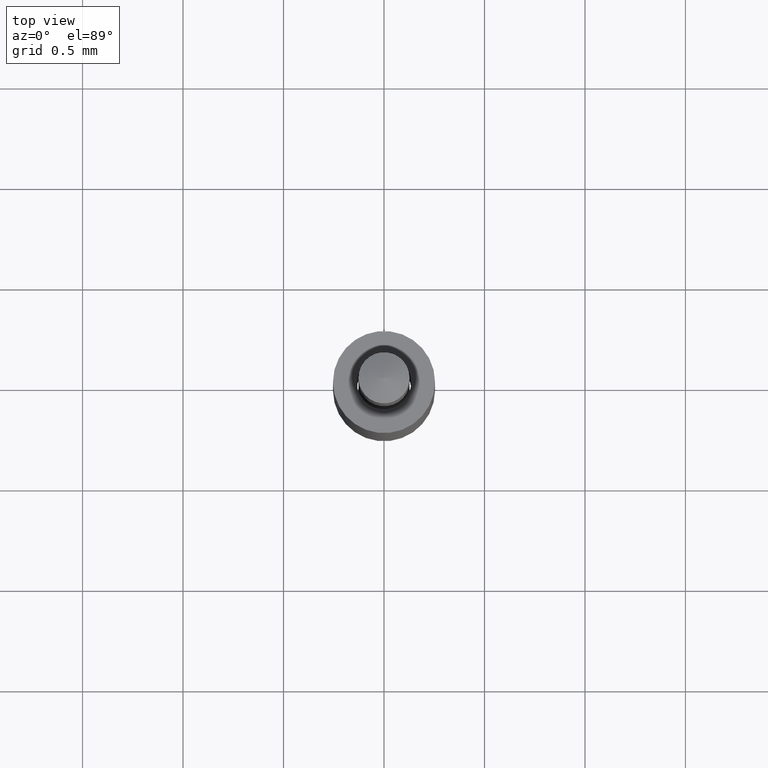
[diagram: clean part render]
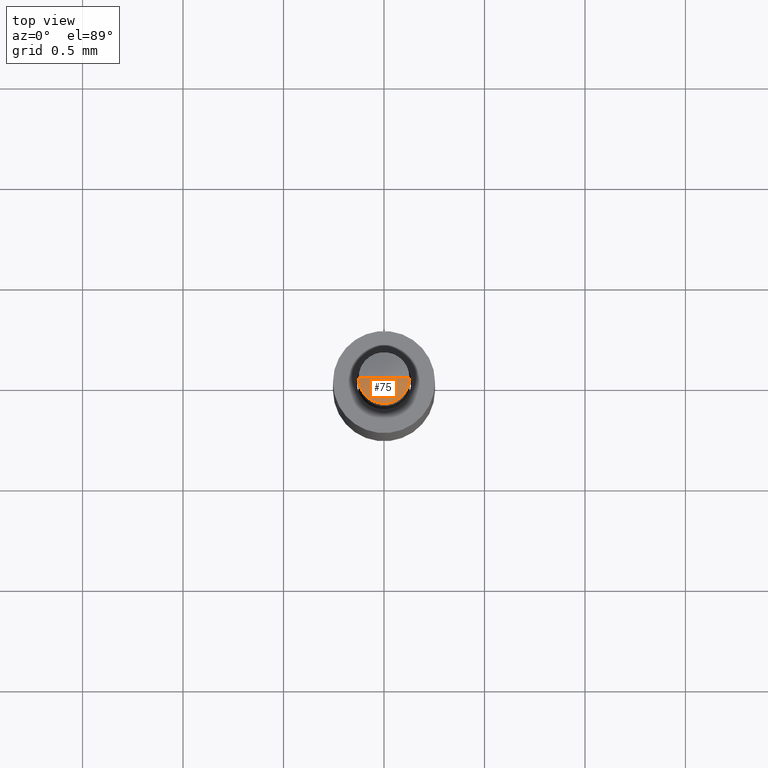
[diagram: same view with one face highlighted and labeled with its STEP entity id]
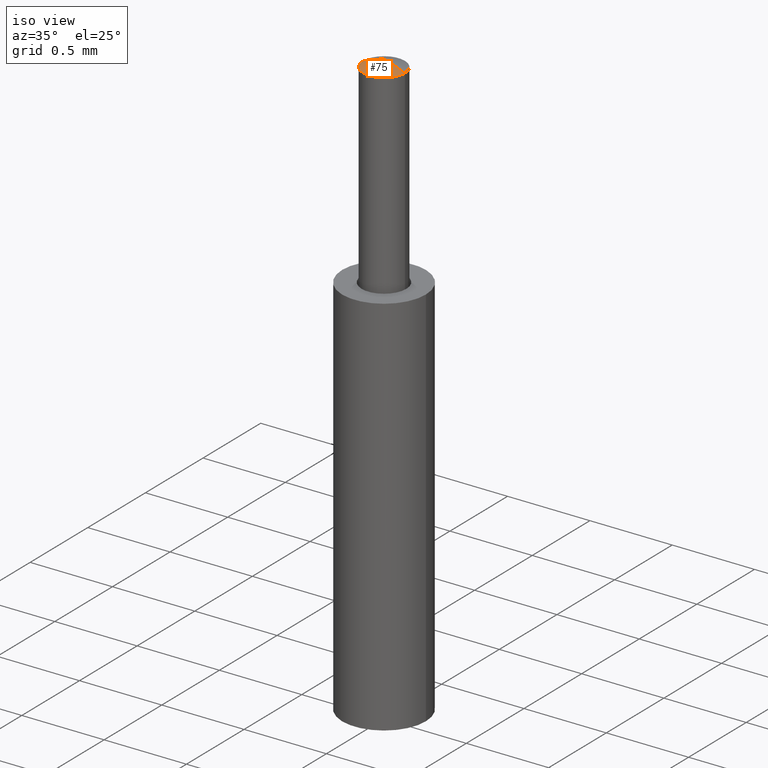
[diagram: same view with one face highlighted and labeled with its STEP entity id]
A machine part, top view. The second image highlights one B-rep face of the part: STEP entity #75.
A second angle (iso view) of the same face is appended — the face is thin or edge-on in the first view.
In plain terms, the highlighted toroidal blend (fillet) surface has major radius 0.2078 mm and minor (blend) radius 0.8356 mm.
Its self-contained STEP definition (entity closure, byte-faithful):
#4 = EDGE_CURVE ( 'NONE', #264, #271, #283, .T. ) ;
#17 = EDGE_CURVE ( 'NONE', #279, #271, #359, .T. ) ;
#19 = EDGE_CURVE ( 'NONE', #279, #264, #296, .T. ) ;
#23 = AXIS2_PLACEMENT_3D ( 'NONE', #244, #235, #232 ) ;
#31 = AXIS2_PLACEMENT_3D ( 'NONE', #141, #142, #252 ) ;
#33 = AXIS2_PLACEMENT_3D ( 'NONE', #149, #148, #153 ) ;
#35 = AXIS2_PLACEMENT_3D ( 'NONE', #183, #180, #184 ) ;
#75 = ADVANCED_FACE ( 'NONE', ( #113 ), #102, .T. ) ;
#102 = TOROIDAL_SURFACE ( 'NONE', #35, -0.008182880665241365500, 0.03289599500414629200 ) ;
#113 = FACE_OUTER_BOUND ( 'NONE', #277, .T. ) ;
#141 = CARTESIAN_POINT ( 'NONE',  ( 0.008182880665241365500, 0.0000000000000000000, 0.1086287128368767600 ) ) ;
#142 = DIRECTION ( 'NONE',  ( 0.0000000000000000000, -1.000000000000000000, 0.0000000000000000000 ) ) ;
#148 = DIRECTION ( 'NONE',  ( -1.224646799147353200E-016, 1.000000000000000000, 0.0000000000000000000 ) ) ;
#149 = CARTESIAN_POINT ( 'NONE',  ( -0.008182880665241365500, -1.002113861449260200E-018, 0.1086287128368767600 ) ) ;
#153 = DIRECTION ( 'NONE',  ( -1.000000000000000000, -1.224646799147353200E-016, 0.0000000000000000000 ) ) ;
#180 = DIRECTION ( 'NONE',  ( -0.0000000000000000000, -0.0000000000000000000, -1.000000000000000000 ) ) ;
#183 = CARTESIAN_POINT ( 'NONE',  ( 0.0000000000000000000, 0.0000000000000000000, 0.1086287128368767600 ) ) ;
#184 = DIRECTION ( 'NONE',  ( -1.000000000000000000, 0.0000000000000000000, 0.0000000000000000000 ) ) ;
#189 = CARTESIAN_POINT ( 'NONE',  ( -0.005000000000000000100, 0.0000000000000000000, 0.1387676933219367000 ) ) ;
#194 = CARTESIAN_POINT ( 'NONE',  ( 0.005000000000000000100, 6.123233995736766900E-019, 0.1387676933219367000 ) ) ;
#195 = CARTESIAN_POINT ( 'NONE',  ( 0.0000000000000000000, 0.0000000000000000000, 0.1404907113826559800 ) ) ;
#232 = DIRECTION ( 'NONE',  ( -1.000000000000000000, 0.0000000000000000000, 0.0000000000000000000 ) ) ;
#235 = DIRECTION ( 'NONE',  ( -0.0000000000000000000, -0.0000000000000000000, -1.000000000000000000 ) ) ;
#244 = CARTESIAN_POINT ( 'NONE',  ( 0.0000000000000000000, 0.0000000000000000000, 0.1387676933219367000 ) ) ;
#252 = DIRECTION ( 'NONE',  ( 0.0000000000000000000, 0.0000000000000000000, -1.000000000000000000 ) ) ;
#264 = VERTEX_POINT ( 'NONE', #194 ) ;
#268 = ORIENTED_EDGE ( 'NONE', *, *, #19, .F. ) ;
#271 = VERTEX_POINT ( 'NONE', #189 ) ;
#277 = EDGE_LOOP ( 'NONE', ( #268, #289, #352 ) ) ;
#279 = VERTEX_POINT ( 'NONE', #195 ) ;
#283 = CIRCLE ( 'NONE', #23, 0.005000000000000000100 ) ;
#289 = ORIENTED_EDGE ( 'NONE', *, *, #17, .T. ) ;
#296 = CIRCLE ( 'NONE', #33, 0.03289599500414629200 ) ;
#352 = ORIENTED_EDGE ( 'NONE', *, *, #4, .F. ) ;
#359 = CIRCLE ( 'NONE', #31, 0.03289599500414629200 ) ;